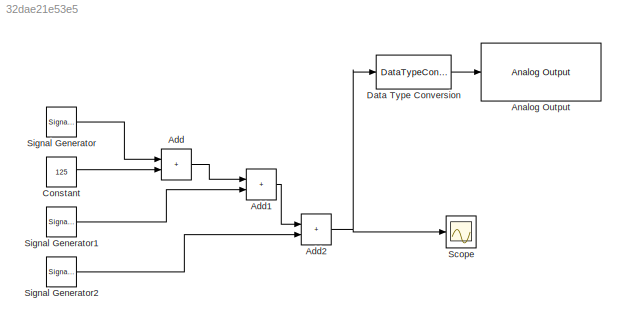
MODEL slx_32dae21e53e5
KIND model
CONFIG AbsTol = auto
CONFIG EnableMultiTasking = on
CONFIG FixedStep = auto
CONFIG MaxStep = auto
CONFIG MinStep = auto
CONFIG RelTol = 1e-3
CONFIG SampleTimeConstraint = Unconstrained
CONFIG SolverName = FixedStepAuto
CONFIG StartTime = 0.0
CONFIG StopTime = inf
BLOCK [Sum] Add
  IconShape = rectangular
BLOCK [Sum] Add1
  IconShape = rectangular
BLOCK [Sum] Add2
  IconShape = rectangular
BLOCK [Reference] Analog Output  REF=arduinolib/Analog Output
  SourceBlock = arduinolib/Analog Output
  SourceType = Analog Output
BLOCK [Constant] Constant
  Value = 125
BLOCK [DataTypeConversion] Data Type Conversion
  OutDataTypeStr = uint16
  RndMeth = Floor
  SaturateOnIntegerOverflow = off
BLOCK [Scope] Scope
  Floating = off
  NumInputPorts = 1
  ScopeSpecificationString = Simulink.scopes.TimeScopeBlockCfg('CurrentConfiguration', extmgr.ConfigurationSet(extmgr.Configuration('Core','General UI',true),extmgr.Configuration('Core','Source UI',true),extmgr.Configuration('Sources','WiredSimulink',true),extmgr.Configuration('Visuals','Time Domain',true,'SerializedDisplays',{struct('MinYLimReal','-37.46524','MaxYLimReal','277.46524','YLabelReal','','MinYLimMag','0.00000','M...<+1360ch>
BLOCK [SignalGenerator] Signal Generator
  Amplitude = 100
  Frequency = 0.5
BLOCK [SignalGenerator] Signal Generator1
  Amplitude = 10
  Frequency = 80
BLOCK [SignalGenerator] Signal Generator2
  Amplitude = 20
  Frequency = 40
LINE Add1:1 -> Add2:1
NET Add2:1 -> Data Type Conversion:1, Scope:1
LINE Add:1 -> Add1:1
LINE Constant:1 -> Add:2
LINE Data Type Conversion:1 -> Analog Output:1
LINE Signal Generator1:1 -> Add1:2
LINE Signal Generator2:1 -> Add2:2
LINE Signal Generator:1 -> Add:1
note: NET lines group one-source signal fan-out (src -> all destinations, sorted); 1:1 wires keep LINE
